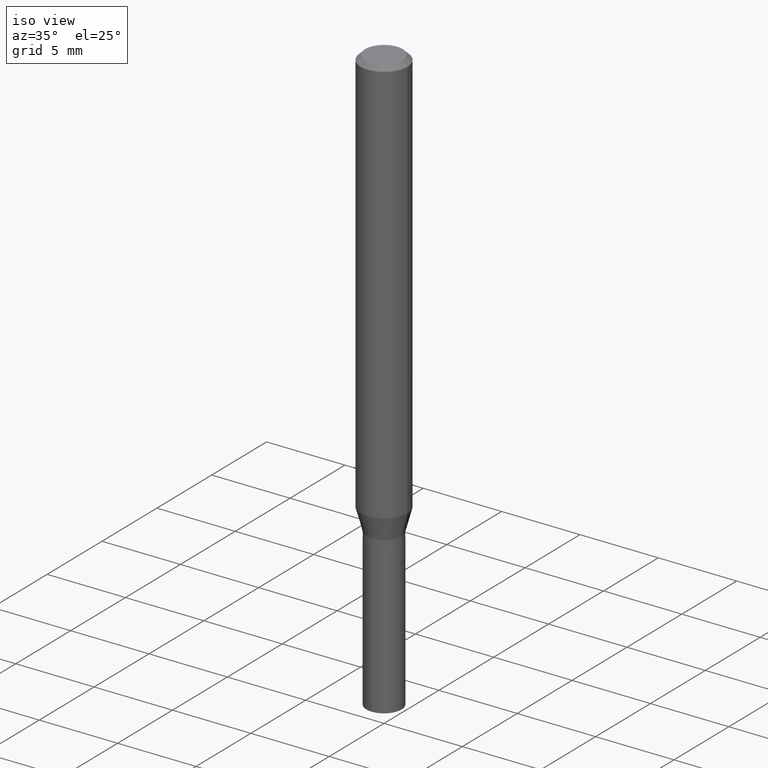
[diagram: clean part render]
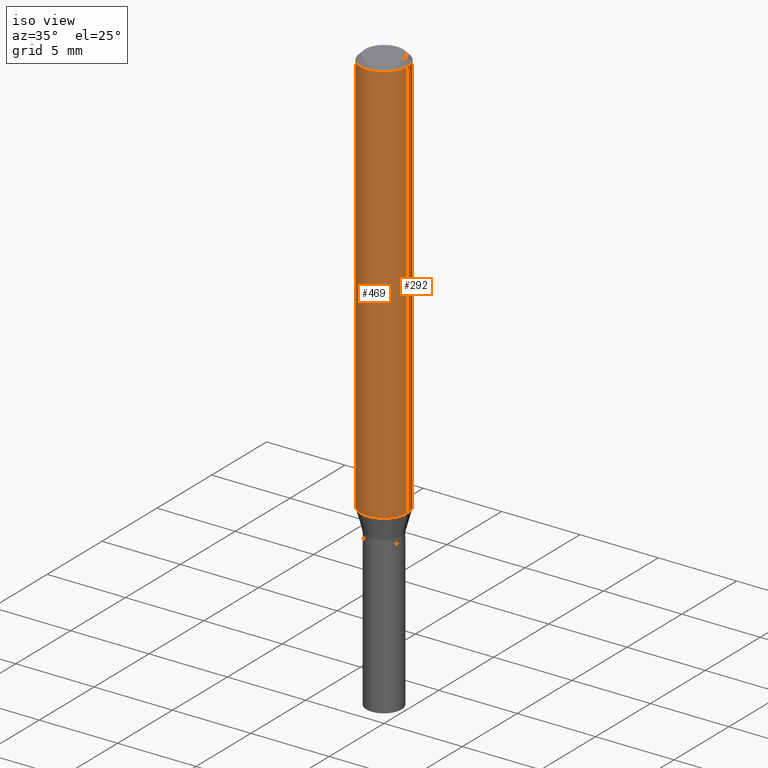
[diagram: same view with one multi-face feature highlighted, each face labeled with its STEP entity id]
A machine part, iso view. The highlighted faces form ONE feature: a constant-radius fillet chain: 2 tangent blend faces with common blend radius 1.4999 mm. The faces share edges in the B-rep.
Their STEP definitions:
[1] entity #292 (Cylinder):
#2 = CARTESIAN_POINT ( 'NONE',  ( 0.05905000000000013016, -3.992878450842360459E-15, -1.025505840426844895 ) ) ;
#12 = CARTESIAN_POINT ( 'NONE',  ( -0.05905000000000013016, -3.160959019258645651E-15, -1.025505840426844895 ) ) ;
#24 = AXIS2_PLACEMENT_3D ( 'NONE', #446, #167, #132 ) ;
#31 = FACE_OUTER_BOUND ( 'NONE', #82, .T. ) ;
#34 = VERTEX_POINT ( 'NONE', #323 ) ;
#50 = CARTESIAN_POINT ( 'NONE',  ( 0.05905000000000006771, -4.123439461173745257E-16, 2.879382386107503723E-30 ) ) ;
#51 = CIRCLE ( 'NONE', #146, 0.05905000000000013016 ) ;
#61 = EDGE_CURVE ( 'NONE', #231, #406, #393, .T. ) ;
#76 = VERTEX_POINT ( 'NONE', #12 ) ;
#82 = EDGE_LOOP ( 'NONE', ( #154, #326, #139, #199 ) ) ;
#89 = LINE ( 'NONE', #279, #136 ) ;
#94 = EDGE_CURVE ( 'NONE', #406, #34, #183, .T. ) ;
#116 = CARTESIAN_POINT ( 'NONE',  ( 2.507842543324521541E-29, -3.580534504724985539E-15, -1.025505840426844895 ) ) ;
#132 = DIRECTION ( 'NONE',  ( 1.000000000000000000, -6.982962677686266711E-15, 0.000000000000000000 ) ) ;
#136 = VECTOR ( 'NONE', #355, 39.37007874015748143 ) ;
#139 = ORIENTED_EDGE ( 'NONE', *, *, #94, .F. ) ;
#146 = AXIS2_PLACEMENT_3D ( 'NONE', #116, #242, #383 ) ;
#154 = ORIENTED_EDGE ( 'NONE', *, *, #321, .T. ) ;
#167 = DIRECTION ( 'NONE',  ( -2.445468806185136597E-29, 3.491481338843145583E-15, 1.000000000000000000 ) ) ;
#183 = CIRCLE ( 'NONE', #24, 0.05904999999999999832 ) ;
#184 = VECTOR ( 'NONE', #328, 39.37007874015748143 ) ;
#199 = ORIENTED_EDGE ( 'NONE', *, *, #61, .F. ) ;
#230 = CYLINDRICAL_SURFACE ( 'NONE', #336, 0.05905000000000006771 ) ;
#231 = VERTEX_POINT ( 'NONE', #2 ) ;
#242 = DIRECTION ( 'NONE',  ( -2.445468806185136597E-29, 3.491481338843145583E-15, 1.000000000000000000 ) ) ;
#266 = DIRECTION ( 'NONE',  ( -2.445468806185136597E-29, 3.491481338843145583E-15, 1.000000000000000000 ) ) ;
#279 = CARTESIAN_POINT ( 'NONE',  ( -0.05905000000000006771, 4.195754854663396409E-16, -2.904631170795525045E-30 ) ) ;
#292 = ADVANCED_FACE ( 'NONE', ( #31 ), #230, .T. ) ;
#310 = CARTESIAN_POINT ( 'NONE',  ( 0.05904999999999999832, -4.535783407291118600E-16, -0.01181000000000007738 ) ) ;
#321 = EDGE_CURVE ( 'NONE', #231, #76, #51, .T. ) ;
#323 = CARTESIAN_POINT ( 'NONE',  ( -0.05904999999999999832, -1.391308964202021352E-15, -0.01181000000000007738 ) ) ;
#326 = ORIENTED_EDGE ( 'NONE', *, *, #448, .T. ) ;
#328 = DIRECTION ( 'NONE',  ( -2.445468806185136877E-29, 3.491481338843145188E-15, 1.000000000000000000 ) ) ;
#336 = AXIS2_PLACEMENT_3D ( 'NONE', #456, #266, #420 ) ;
#355 = DIRECTION ( 'NONE',  ( -2.445468806185136877E-29, 3.491481338843145188E-15, 1.000000000000000000 ) ) ;
#383 = DIRECTION ( 'NONE',  ( 1.000000000000000000, -6.982962677686265133E-15, 0.000000000000000000 ) ) ;
#393 = LINE ( 'NONE', #50, #184 ) ;
#406 = VERTEX_POINT ( 'NONE', #310 ) ;
#420 = DIRECTION ( 'NONE',  ( 1.000000000000000000, -6.982962677686266711E-15, 4.876176775795936353E-29 ) ) ;
#446 = CARTESIAN_POINT ( 'NONE',  ( 2.888098660104665518E-31, -4.123439461173782112E-17, -0.01181000000000007738 ) ) ;
#448 = EDGE_CURVE ( 'NONE', #76, #34, #89, .T. ) ;
#456 = CARTESIAN_POINT ( 'NONE',  ( 0.000000000000000000, 0.000000000000000000, 0.000000000000000000 ) ) ;
[2] entity #469 (Cylinder):
#2 = CARTESIAN_POINT ( 'NONE',  ( 0.05905000000000013016, -3.992878450842360459E-15, -1.025505840426844895 ) ) ;
#4 = EDGE_LOOP ( 'NONE', ( #455, #344, #325, #201 ) ) ;
#12 = CARTESIAN_POINT ( 'NONE',  ( -0.05905000000000013016, -3.160959019258645651E-15, -1.025505840426844895 ) ) ;
#15 = FACE_OUTER_BOUND ( 'NONE', #4, .T. ) ;
#34 = VERTEX_POINT ( 'NONE', #323 ) ;
#50 = CARTESIAN_POINT ( 'NONE',  ( 0.05905000000000006771, -4.123439461173745257E-16, 2.879382386107503723E-30 ) ) ;
#60 = DIRECTION ( 'NONE',  ( -2.445468806185136597E-29, 3.491481338843145583E-15, 1.000000000000000000 ) ) ;
#61 = EDGE_CURVE ( 'NONE', #231, #406, #393, .T. ) ;
#76 = VERTEX_POINT ( 'NONE', #12 ) ;
#89 = LINE ( 'NONE', #279, #136 ) ;
#99 = CARTESIAN_POINT ( 'NONE',  ( 2.888098660104665518E-31, -4.123439461173782112E-17, -0.01181000000000007738 ) ) ;
#126 = DIRECTION ( 'NONE',  ( -2.445468806185136597E-29, 3.491481338843145583E-15, 1.000000000000000000 ) ) ;
#136 = VECTOR ( 'NONE', #355, 39.37007874015748143 ) ;
#162 = EDGE_CURVE ( 'NONE', #34, #406, #329, .T. ) ;
#168 = CYLINDRICAL_SURFACE ( 'NONE', #472, 0.05905000000000006771 ) ;
#169 = DIRECTION ( 'NONE',  ( 1.000000000000000000, -6.982962677686266711E-15, 4.876176775795936353E-29 ) ) ;
#184 = VECTOR ( 'NONE', #328, 39.37007874015748143 ) ;
#186 = DIRECTION ( 'NONE',  ( 1.000000000000000000, -6.982962677686265133E-15, 0.000000000000000000 ) ) ;
#201 = ORIENTED_EDGE ( 'NONE', *, *, #162, .F. ) ;
#217 = DIRECTION ( 'NONE',  ( 1.000000000000000000, -6.982962677686266711E-15, 0.000000000000000000 ) ) ;
#221 = EDGE_CURVE ( 'NONE', #76, #231, #394, .T. ) ;
#231 = VERTEX_POINT ( 'NONE', #2 ) ;
#279 = CARTESIAN_POINT ( 'NONE',  ( -0.05905000000000006771, 4.195754854663396409E-16, -2.904631170795525045E-30 ) ) ;
#310 = CARTESIAN_POINT ( 'NONE',  ( 0.05904999999999999832, -4.535783407291118600E-16, -0.01181000000000007738 ) ) ;
#318 = CARTESIAN_POINT ( 'NONE',  ( 0.000000000000000000, 0.000000000000000000, 0.000000000000000000 ) ) ;
#323 = CARTESIAN_POINT ( 'NONE',  ( -0.05904999999999999832, -1.391308964202021352E-15, -0.01181000000000007738 ) ) ;
#325 = ORIENTED_EDGE ( 'NONE', *, *, #61, .T. ) ;
#328 = DIRECTION ( 'NONE',  ( -2.445468806185136877E-29, 3.491481338843145188E-15, 1.000000000000000000 ) ) ;
#329 = CIRCLE ( 'NONE', #442, 0.05904999999999999832 ) ;
#341 = DIRECTION ( 'NONE',  ( -2.445468806185136597E-29, 3.491481338843145583E-15, 1.000000000000000000 ) ) ;
#344 = ORIENTED_EDGE ( 'NONE', *, *, #221, .T. ) ;
#355 = DIRECTION ( 'NONE',  ( -2.445468806185136877E-29, 3.491481338843145188E-15, 1.000000000000000000 ) ) ;
#393 = LINE ( 'NONE', #50, #184 ) ;
#394 = CIRCLE ( 'NONE', #457, 0.05905000000000013016 ) ;
#406 = VERTEX_POINT ( 'NONE', #310 ) ;
#414 = CARTESIAN_POINT ( 'NONE',  ( 2.507842543324521541E-29, -3.580534504724985539E-15, -1.025505840426844895 ) ) ;
#442 = AXIS2_PLACEMENT_3D ( 'NONE', #99, #60, #217 ) ;
#448 = EDGE_CURVE ( 'NONE', #76, #34, #89, .T. ) ;
#455 = ORIENTED_EDGE ( 'NONE', *, *, #448, .F. ) ;
#457 = AXIS2_PLACEMENT_3D ( 'NONE', #414, #341, #186 ) ;
#469 = ADVANCED_FACE ( 'NONE', ( #15 ), #168, .T. ) ;
#472 = AXIS2_PLACEMENT_3D ( 'NONE', #318, #126, #169 ) ;